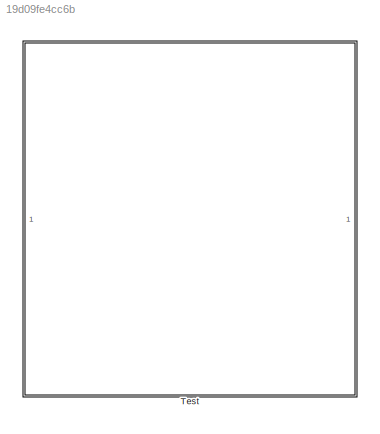
MODEL slx_19d09fe4cc6b
KIND library
CONFIG AbsTol = auto
CONFIG EnableMultiTasking = off
CONFIG FixedStep = auto
CONFIG MaxStep = auto
CONFIG MinStep = auto
CONFIG RelTol = 1e-3
CONFIG SampleTimeConstraint = Unconstrained
CONFIG SolverName = VariableStepAuto
CONFIG StartTime = 0.0
CONFIG StopTime = 10.0
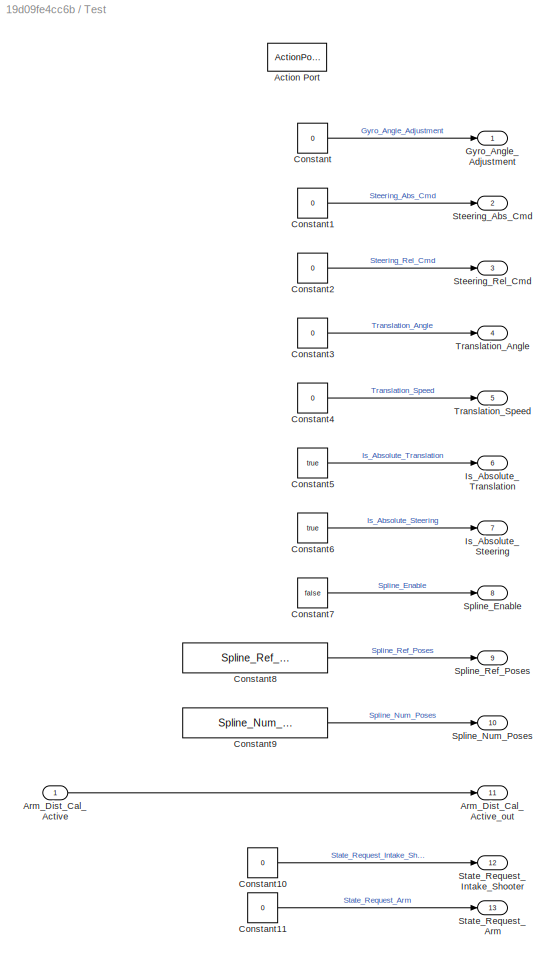
BLOCK [SubSystem] Test
  TreatAsAtomicUnit = on
BLOCK [ActionPort] Test/Action Port
BLOCK [Inport] Test/Arm_Dist_Cal_Active
BLOCK [Outport] Test/Arm_Dist_Cal_Active_out
  Port = 11
BLOCK [Constant] Test/Constant
  Value = 0
BLOCK [Constant] Test/Constant1
  Value = 0
BLOCK [Constant] Test/Constant10
  Value = 0
BLOCK [Constant] Test/Constant11
  Value = 0
BLOCK [Constant] Test/Constant2
  Value = 0
BLOCK [Constant] Test/Constant3
  Value = 0
BLOCK [Constant] Test/Constant4
  Value = 0
BLOCK [Constant] Test/Constant5
  Value = true
BLOCK [Constant] Test/Constant6
  Value = true
BLOCK [Constant] Test/Constant7
  OutDataTypeStr = boolean
  Value = false
BLOCK [Constant] Test/Constant8
  Value = Spline_Ref_Poses_default
BLOCK [Constant] Test/Constant9
  OutDataTypeStr = double
  Value = Spline_Num_Poses_default
BLOCK [Outport] Test/Gyro_Angle_Adjustment
BLOCK [Outport] Test/Is_Absolute_Steering
  Port = 7
BLOCK [Outport] Test/Is_Absolute_Translation
  Port = 6
BLOCK [Outport] Test/Spline_Enable
  Port = 8
BLOCK [Outport] Test/Spline_Num_Poses
  Port = 10
BLOCK [Outport] Test/Spline_Ref_Poses
  Port = 9
BLOCK [Outport] Test/State_Request_Arm
  Port = 13
BLOCK [Outport] Test/State_Request_Intake_Shooter
  Port = 12
BLOCK [Outport] Test/Steering_Abs_Cmd
  Port = 2
BLOCK [Outport] Test/Steering_Rel_Cmd
  Port = 3
BLOCK [Outport] Test/Translation_Angle
  Port = 4
BLOCK [Outport] Test/Translation_Speed
  Port = 5
LINE Test/Arm_Dist_Cal_Active:1 -> Test/Arm_Dist_Cal_Active_out:1
LINE Test/Constant10:1 -> Test/State_Request_Intake_Shooter:1
LINE Test/Constant11:1 -> Test/State_Request_Arm:1
LINE Test/Constant1:1 -> Test/Steering_Abs_Cmd:1
LINE Test/Constant2:1 -> Test/Steering_Rel_Cmd:1
LINE Test/Constant3:1 -> Test/Translation_Angle:1
LINE Test/Constant4:1 -> Test/Translation_Speed:1
LINE Test/Constant5:1 -> Test/Is_Absolute_Translation:1
LINE Test/Constant6:1 -> Test/Is_Absolute_Steering:1
LINE Test/Constant7:1 -> Test/Spline_Enable:1
LINE Test/Constant8:1 -> Test/Spline_Ref_Poses:1
LINE Test/Constant9:1 -> Test/Spline_Num_Poses:1
LINE Test/Constant:1 -> Test/Gyro_Angle_Adjustment:1
